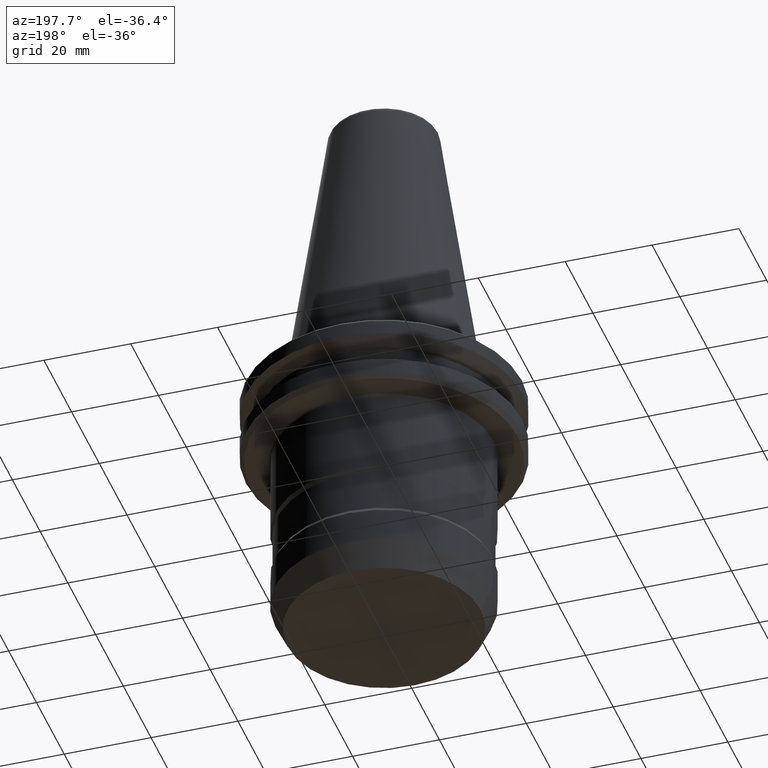
[diagram: clean part render]
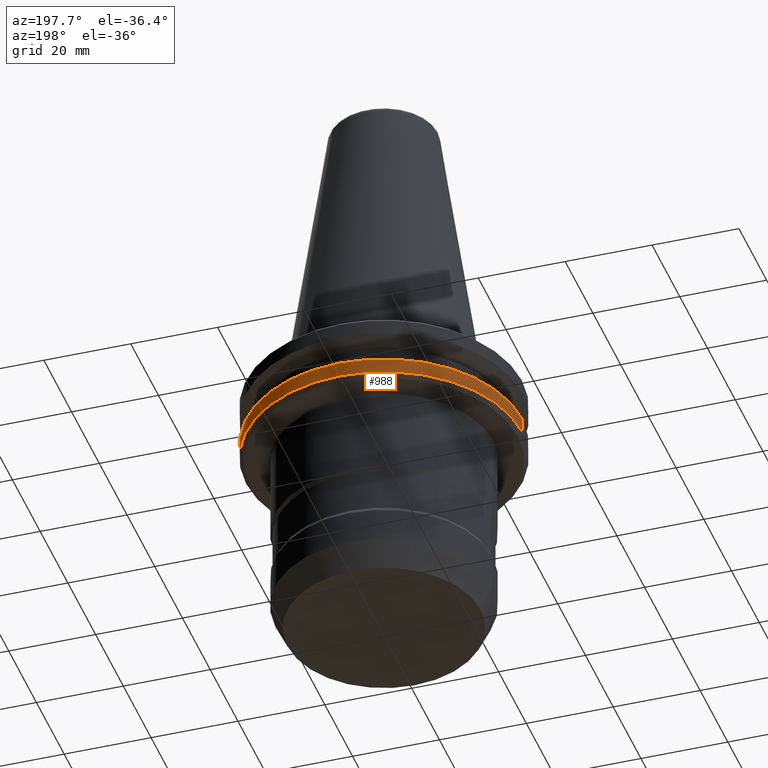
[diagram: same view with one face highlighted and labeled with its STEP entity id]
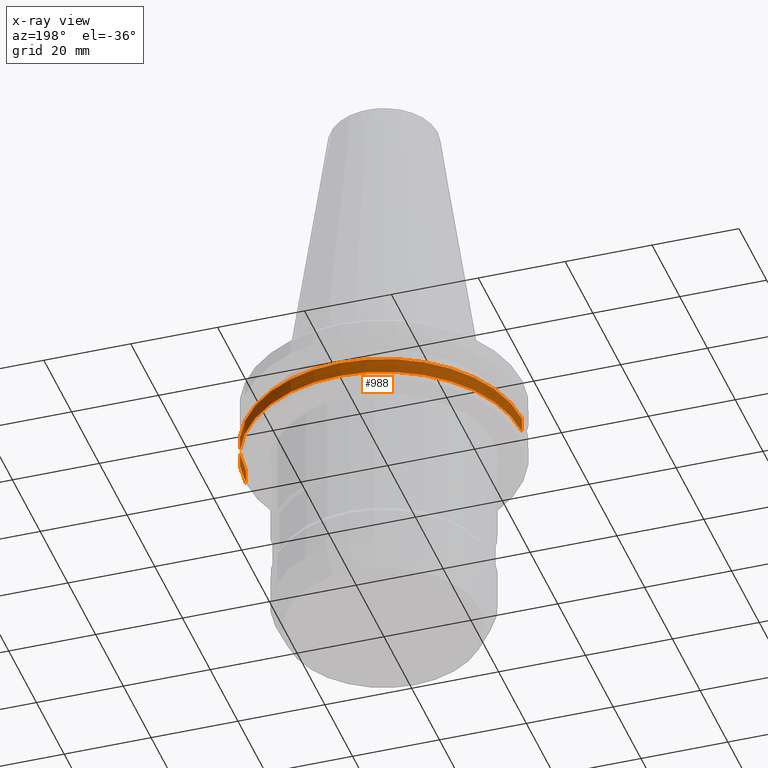
[diagram: x-ray of the same camera — body ghosted, the highlighted face saturated]
A machine part, auxiliary view. The second image highlights one B-rep face of the part: STEP entity #988.
The next image is the same camera in x-ray: the body ghosted, the highlighted face saturated — about 0% of this face is hidden behind the body in this view.
In plain terms, the highlighted cylindrical surface (partial cylindrical patch) has radius 31.75 mm, axis along (-0, -0, -1).
Its self-contained STEP definition (entity closure, byte-faithful):
#20 = EDGE_CURVE ( 'NONE', #109, #66, #863, .T. ) ;
#51 = EDGE_CURVE ( 'NONE', #1089, #109, #220, .T. ) ;
#60 = CARTESIAN_POINT ( 'NONE',  ( -31.74999999999999300, 0.0000000000000000000, -14.62183664205596400 ) ) ;
#66 = VERTEX_POINT ( 'NONE', #958 ) ;
#109 = VERTEX_POINT ( 'NONE', #277 ) ;
#180 = DIRECTION ( 'NONE',  ( -0.0000000000000000000, -0.0000000000000000000, -1.000000000000000000 ) ) ;
#220 = CIRCLE ( 'NONE', #917, 31.74999999999999300 ) ;
#244 = DIRECTION ( 'NONE',  ( -0.0000000000000000000, -0.0000000000000000000, -1.000000000000000000 ) ) ;
#248 = ORIENTED_EDGE ( 'NONE', *, *, #1085, .F. ) ;
#249 = CARTESIAN_POINT ( 'NONE',  ( 0.0000000000000000000, 0.0000000000000000000, -73.52490428627834300 ) ) ;
#277 = CARTESIAN_POINT ( 'NONE',  ( 31.74999999999999300, 3.888253587292845700E-015, -14.62183664205596400 ) ) ;
#278 = DIRECTION ( 'NONE',  ( -1.000000000000000000, 0.0000000000000000000, 0.0000000000000000000 ) ) ;
#296 = ORIENTED_EDGE ( 'NONE', *, *, #20, .T. ) ;
#331 = AXIS2_PLACEMENT_3D ( 'NONE', #249, #244, #819 ) ;
#345 = CARTESIAN_POINT ( 'NONE',  ( -31.75000000000000000, 0.0000000000000000000, -73.52490428627834300 ) ) ;
#354 = CIRCLE ( 'NONE', #548, 31.75000000000000000 ) ;
#416 = LINE ( 'NONE', #345, #914 ) ;
#439 = CARTESIAN_POINT ( 'NONE',  ( -31.75000000000000000, 3.888253587292847300E-015, -18.10000000000011500 ) ) ;
#471 = CYLINDRICAL_SURFACE ( 'NONE', #331, 31.75000000000000000 ) ;
#490 = CARTESIAN_POINT ( 'NONE',  ( 0.0000000000000000000, 0.0000000000000000000, -18.10000000000011500 ) ) ;
#548 = AXIS2_PLACEMENT_3D ( 'NONE', #490, #1168, #596 ) ;
#557 = DIRECTION ( 'NONE',  ( -0.0000000000000000000, -0.0000000000000000000, -1.000000000000000000 ) ) ;
#567 = VECTOR ( 'NONE', #180, 1000.000000000000000 ) ;
#596 = DIRECTION ( 'NONE',  ( -1.000000000000000000, 0.0000000000000000000, 0.0000000000000000000 ) ) ;
#605 = FACE_OUTER_BOUND ( 'NONE', #1242, .T. ) ;
#664 = CARTESIAN_POINT ( 'NONE',  ( 0.0000000000000000000, 0.0000000000000000000, -14.62183664205596400 ) ) ;
#697 = VERTEX_POINT ( 'NONE', #439 ) ;
#755 = CARTESIAN_POINT ( 'NONE',  ( 31.75000000000000000, 3.888253587292846500E-015, -73.52490428627834300 ) ) ;
#773 = ORIENTED_EDGE ( 'NONE', *, *, #836, .F. ) ;
#819 = DIRECTION ( 'NONE',  ( -1.000000000000000000, 0.0000000000000000000, 0.0000000000000000000 ) ) ;
#832 = DIRECTION ( 'NONE',  ( -0.0000000000000000000, -0.0000000000000000000, -1.000000000000000000 ) ) ;
#836 = EDGE_CURVE ( 'NONE', #697, #66, #354, .T. ) ;
#863 = LINE ( 'NONE', #755, #567 ) ;
#914 = VECTOR ( 'NONE', #832, 1000.000000000000000 ) ;
#917 = AXIS2_PLACEMENT_3D ( 'NONE', #664, #557, #278 ) ;
#958 = CARTESIAN_POINT ( 'NONE',  ( 31.75000000000000000, 0.0000000000000000000, -18.10000000000011500 ) ) ;
#962 = ORIENTED_EDGE ( 'NONE', *, *, #51, .T. ) ;
#988 = ADVANCED_FACE ( 'NONE', ( #605 ), #471, .T. ) ;
#1085 = EDGE_CURVE ( 'NONE', #1089, #697, #416, .T. ) ;
#1089 = VERTEX_POINT ( 'NONE', #60 ) ;
#1168 = DIRECTION ( 'NONE',  ( -0.0000000000000000000, -0.0000000000000000000, -1.000000000000000000 ) ) ;
#1242 = EDGE_LOOP ( 'NONE', ( #962, #296, #773, #248 ) ) ;